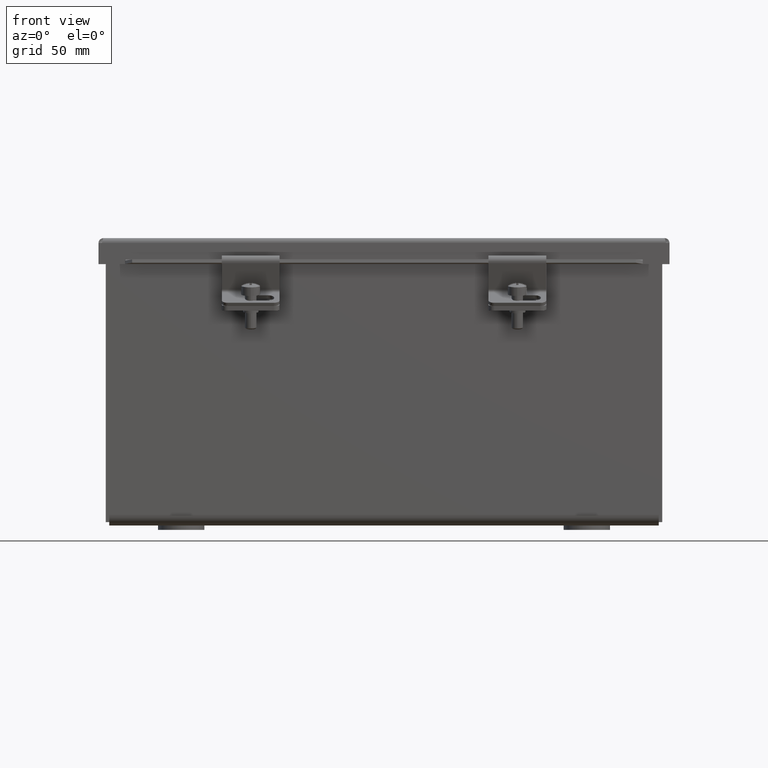
[diagram: clean part render]
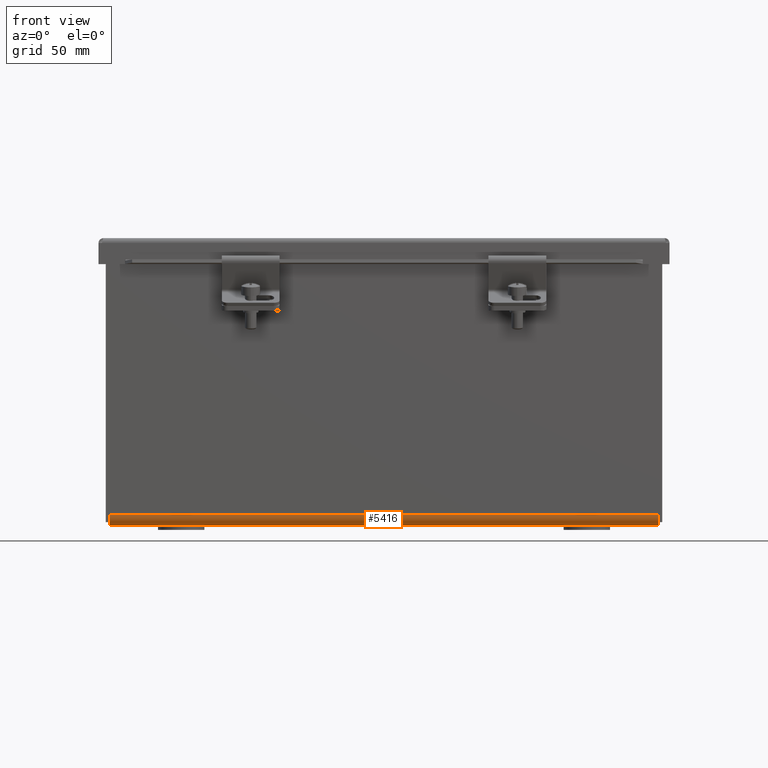
[diagram: same view with one face highlighted and labeled with its STEP entity id]
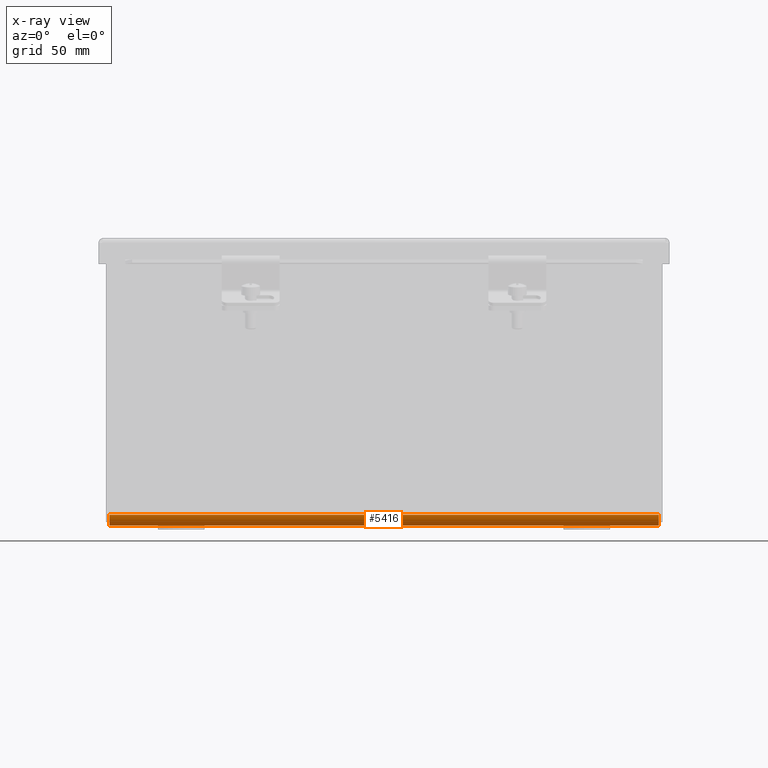
[diagram: x-ray of the same camera — body ghosted, the highlighted face saturated]
A machine part, front view. The second image highlights one B-rep face of the part: STEP entity #5416.
The next image is the same camera in x-ray: the body ghosted, the highlighted face saturated — about 0% of this face is hidden behind the body in this view.
In plain terms, the highlighted cylindrical surface (edge-blend (fillet) strip) has radius 5.8483 mm, axis along (-1, -0, 0).
Its self-contained STEP definition (entity closure, byte-faithful):
#419=FACE_OUTER_BOUND('',#719,.T.);
#719=EDGE_LOOP('',(#3693,#3694,#3695,#3696));
#1057=CIRCLE('',#5920,0.23025);
#1058=CIRCLE('',#5921,0.23025);
#1269=LINE('',#8051,#1837);
#1270=LINE('',#8055,#1838);
#1837=VECTOR('',#6496,0.393700787401575);
#1838=VECTOR('',#6499,0.393700787401575);
#2388=VERTEX_POINT('',#8039);
#2390=VERTEX_POINT('',#8047);
#2391=VERTEX_POINT('',#8052);
#2392=VERTEX_POINT('',#8054);
#2893=EDGE_CURVE('',#2388,#2390,#1269,.T.);
#2894=EDGE_CURVE('',#2391,#2388,#1057,.T.);
#2895=EDGE_CURVE('',#2392,#2391,#1270,.T.);
#2896=EDGE_CURVE('',#2390,#2392,#1058,.T.);
#3693=ORIENTED_EDGE('',*,*,#2893,.F.);
#3694=ORIENTED_EDGE('',*,*,#2894,.F.);
#3695=ORIENTED_EDGE('',*,*,#2895,.F.);
#3696=ORIENTED_EDGE('',*,*,#2896,.F.);
#5117=CYLINDRICAL_SURFACE('',#5919,0.23025);
#5416=ADVANCED_FACE('',(#419),#5117,.T.);
#5919=AXIS2_PLACEMENT_3D('',#8050,#6494,#6495);
#5920=AXIS2_PLACEMENT_3D('',#8053,#6497,#6498);
#5921=AXIS2_PLACEMENT_3D('',#8056,#6500,#6501);
#6494=DIRECTION('center_axis',(-1.,0.,0.));
#6495=DIRECTION('ref_axis',(0.,-1.,0.));
#6496=DIRECTION('',(1.,-4.83232455826276E-33,-2.95894540135882E-49));
#6497=DIRECTION('center_axis',(-1.,0.,0.));
#6498=DIRECTION('ref_axis',(0.,0.,-1.));
#6499=DIRECTION('',(-1.,0.,0.));
#6500=DIRECTION('center_axis',(1.,0.,0.));
#6501=DIRECTION('ref_axis',(0.,-1.,0.));
#8039=CARTESIAN_POINT('',(0.,-2.04527548708822E-17,0.23025));
#8047=CARTESIAN_POINT('',(11.852,-1.69141044266923E-17,0.23025));
#8050=CARTESIAN_POINT('Origin',(0.,0.23025,0.23025));
#8051=CARTESIAN_POINT('',(5.926,-3.41119948392035E-17,0.23025));
#8052=CARTESIAN_POINT('',(0.,0.23025,-1.09273919746571E-17));
#8053=CARTESIAN_POINT('Origin',(0.,0.23025,0.23025));
#8054=CARTESIAN_POINT('',(11.852,0.23025,-1.09273919746571E-17));
#8055=CARTESIAN_POINT('',(8.889,0.23025,0.));
#8056=CARTESIAN_POINT('Origin',(11.852,0.23025,0.23025));